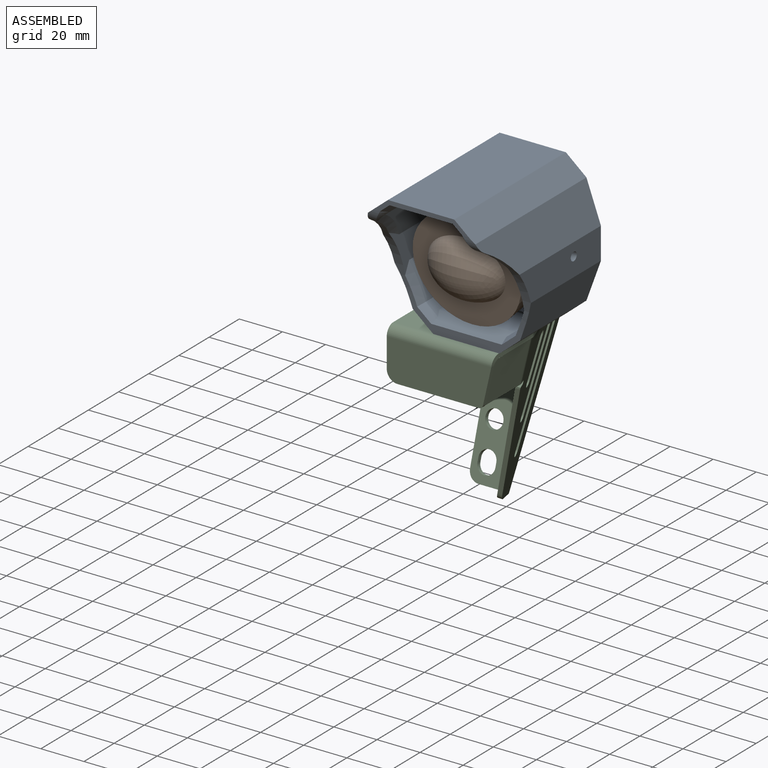
[diagram: assembled view]
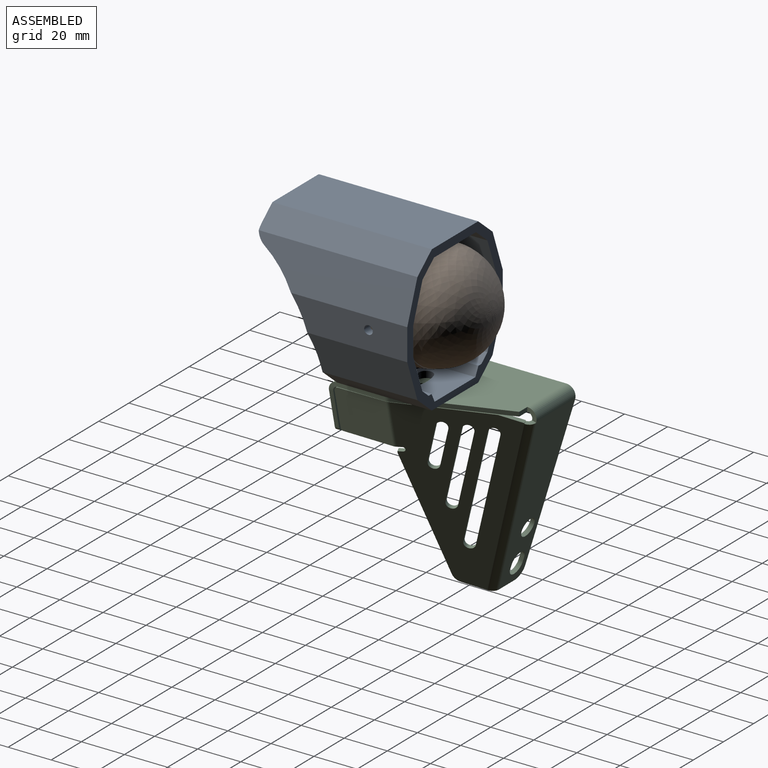
[diagram: assembled view, second angle]
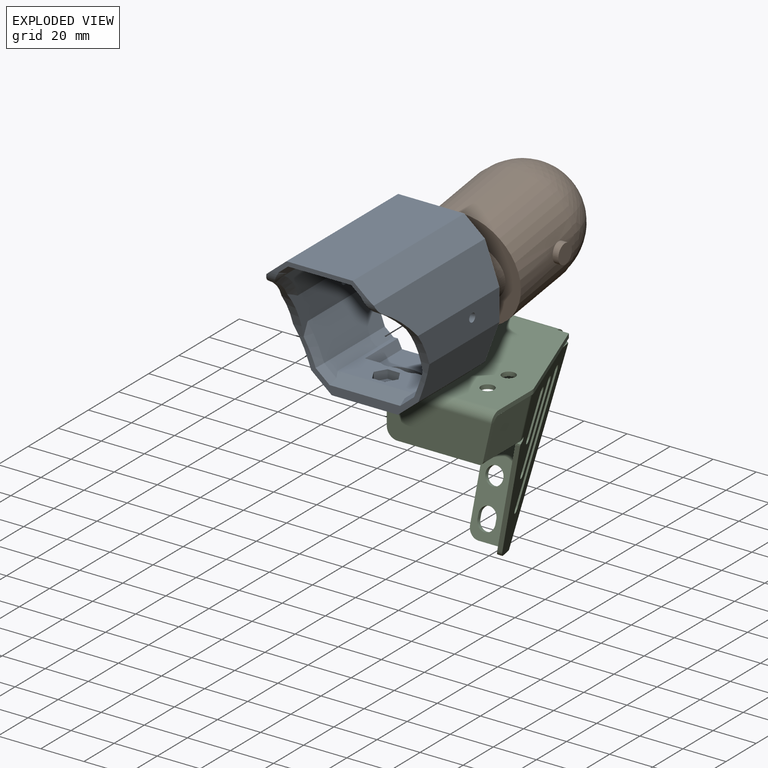
[diagram: exploded view]
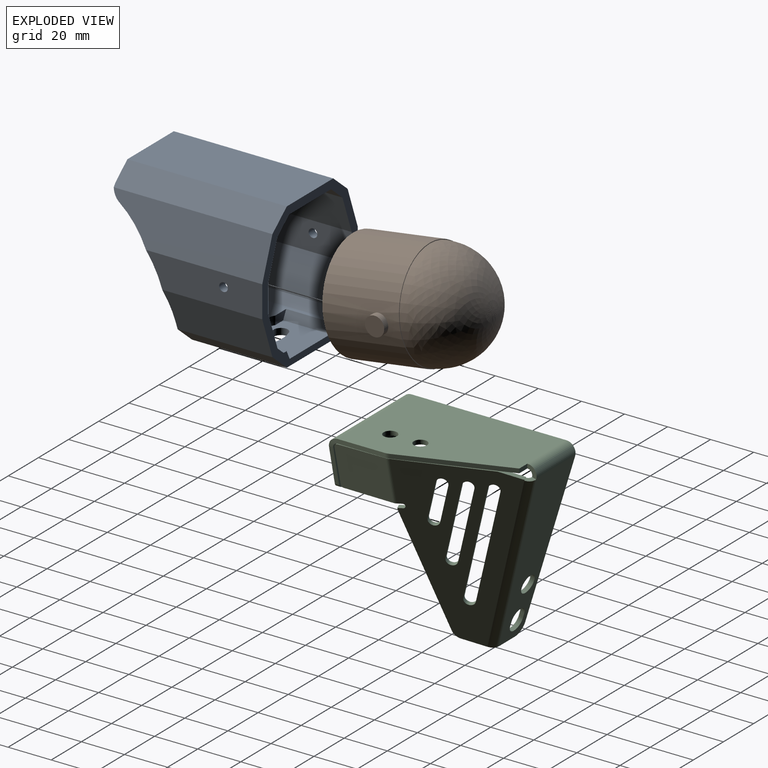
[diagram: exploded view, second angle]
ASSEMBLY  parts=3 mates=2
PART A: 67 faces, bbox 63.6x74.3x67.9 mm
  f0: plane 37x34.99mm, normal (0,0,1), area 518.5mm2, adj f8,f9,f30,f46,f47,f48,f49,f50
  f1: cylinder r=17.2mm len=11.77mm, axis (0,0,-1), area 36mm2, adj f2,f4,f6,f57
  f2: cylinder r=3.2mm len=6.21mm, axis (0,0,-1), area 30.2mm2, adj f1,f3,f6,f57
  f3: cylinder r=10.8mm len=7.39mm, axis (0,0,-1), area 22.6mm2, adj f2,f4,f6,f57
  f4: cylinder r=3.2mm len=6.21mm, axis (0,0,-1), area 30.2mm2, adj f1,f3,f6,f57
  f5: cylinder r=3.2mm len=6.4mm, axis (0,0,-1), area 60.3mm2, adj f6,f45
  f6: plane 44x30.76mm, normal (0,0,-1), area 1226.4mm2, adj f1,f2,f3,f4,f5,f12,f13,f30
  f7: plane 42.48x16.81mm, normal (-0.94,0,0.34), area 730.7mm2, adj f8,f28,f30,f63,f64
  f8: plane 40.2x5.67mm, normal (-0.64,0,0.77), area 215.4mm2, adj f0,f7,f30,f58,f62
  f9: plane 40.2x5.67mm, normal (0.64,0,0.77), area 215.4mm2, adj f0,f10,f30,f58,f59
  f10: plane 42.48x16.8mm, normal (0.94,0,0.34), area 730.7mm2, adj f9,f15,f30,f60,f61
  f11: plane 46.47x18.53mm, normal (-0.94,0,-0.34), area 877.5mm2, adj f12,f27,f30,f32,f33
  f12: plane 44x9.55mm, normal (-0.64,0,-0.77), area 548.6mm2, adj f6,f11,f30,f32
  f13: plane 44x9.55mm, normal (0.64,0,-0.77), area 548.6mm2, adj f6,f14,f30,f32
  f14: plane 46.47x18.53mm, normal (0.94,0,-0.34), area 877.5mm2, adj f13,f21,f30,f31,f32
  f15: plane 56.18x22.08mm, normal (1,0,0), area 666.1mm2, adj f10,f16,f30,f33,f35,f44,f60
  f16: plane 67.05x16.83mm, normal (0.94,0,-0.34), area 1012.7mm2, adj f15,f17,f30,f44
  f17: plane 70.02x7.9mm, normal (0.64,0,-0.77), area 693.8mm2, adj f16,f18,f30,f42,f43,f44
  f18: plane 70x27.84mm, normal (0,0,-1), area 1949.1mm2, adj f17,f19,f30,f41
  f19: plane 70.01x7.9mm, normal (-0.64,0,-0.77), area 693.8mm2, adj f18,f20,f30,f38,f39,f40
  f20: plane 67.05x16.83mm, normal (-0.94,0,-0.34), area 1012.7mm2, adj f19,f28,f30,f38
  f21: plane 54x14.71mm, normal (1,0,0), area 718mm2, adj f14,f22,f30,f31,f34
  f22: plane 73.92x18.74mm, normal (0.94,0,0.34), area 1251.7mm2, adj f21,f23,f30,f31,f36
  f23: plane 74.03x9.58mm, normal (0.64,0,0.77), area 922.3mm2, adj f22,f24,f29,f30,f36
  f24: plane 74x30.76mm, normal (0,0,1), area 2275.9mm2, adj f23,f25,f29,f30
  f25: plane 74.03x9.58mm, normal (-0.64,0,0.77), area 922.3mm2, adj f24,f26,f29,f30,f37
  f26: plane 73.92x18.74mm, normal (-0.94,0,0.34), area 1251.7mm2, adj f25,f27,f30,f33,f37
  f27: plane 54x14.71mm, normal (-1,0,0), area 718mm2, adj f11,f26,f30,f33,f35
  f28: plane 56.18x22.08mm, normal (-1,0,0), area 666.1mm2, adj f7,f20,f30,f31,f34,f38,f63
  f29: plane 44.31x5.69mm, normal (0,-1,0), area 89.2mm2, adj f23,f24,f25,f36,f37,f40,f41,f42
  f30: plane 67.66x63.3mm, normal (0,1,0), area 803.8mm2, adj f0,f6,f7,f8,f9,f10,f11,f12
  f31: cylinder r=50mm len=43.79mm, axis (1,0,0), area 177.3mm2, adj f14,f21,f22,f28,f32,f36,f38,f39
  f32: plane 52.17x11.18mm, normal (0,-1,0), area 190.5mm2, adj f6,f11,f12,f13,f14,f31,f33,f58
  f33: cylinder r=50mm len=43.79mm, axis (1,0,0), area 177.3mm2, adj f11,f15,f26,f27,f32,f37,f43,f44
  f34: cylinder r=2mm len=4mm, axis (1,0,0), area 50.3mm2, adj f21,f28
  f35: cylinder r=2mm len=4mm, axis (1,0,0), area 50.3mm2, adj f15,f27
  f36: cylinder r=8mm len=7.59mm, axis (1,0,0), area 34.4mm2, adj f22,f23,f29,f31,f39
  f37: cylinder r=8mm len=7.59mm, axis (1,0,0), area 34.4mm2, adj f25,f26,f29,f33,f43
  f38: bspline ~20.67x18.79mm, area 88.4mm2, adj f19,f20,f28,f31,f39
  f39: bspline ~7.06x6.12mm, area 28.3mm2, adj f19,f31,f36,f38,f40
  f40: plane 5.22x5.12mm, normal (-0.57,-0.45,-0.69), area 24mm2, adj f19,f29,f39,f41
  f41: plane 29.3x4mm, normal (0,-0.45,-0.89), area 127.8mm2, adj f18,f29,f40,f42
  f42: plane 5.22x5.12mm, normal (0.57,-0.45,-0.69), area 24mm2, adj f17,f29,f41,f43
  f43: bspline ~7.06x6.12mm, area 28.3mm2, adj f17,f33,f37,f42,f44
  f44: bspline ~20.67x18.79mm, area 88.4mm2, adj f15,f16,f17,f33,f43
  f45: plane 11.6x10.11mm, normal (0,0,1), area 55.3mm2, adj f5,f46,f47,f48,f49,f50,f51
  f46: plane 5.05x4mm, normal (0.87,0.49,0), area 23.2mm2, adj f0,f45,f47,f51
  f47: plane 5.8x4mm, normal (0.01,1,0), area 23.2mm2, adj f0,f45,f46,f48
  f48: plane 4.99x4mm, normal (-0.86,0.51,0), area 23.2mm2, adj f0,f45,f47,f49
  f49: plane 5.05x4mm, normal (-0.87,-0.49,0), area 23.2mm2, adj f0,f45,f48,f50
  f50: plane 5.8x4mm, normal (-0.01,-1,0), area 23.2mm2, adj f0,f45,f49,f51
  f51: plane 4.99x4mm, normal (0.86,-0.51,0), area 23.2mm2, adj f0,f45,f46,f50
  f52: plane 7.28x4mm, normal (0,1,0), area 25.1mm2, adj f0,f53,f57,f65
  f53: cylinder r=6.05mm len=5.48mm, axis (0,0,1), area 22.9mm2, adj f0,f52,f54,f57
  f54: cylinder r=8mm len=5.75mm, axis (0,0,1), area 23.5mm2, adj f0,f53,f55,f57
  f55: cylinder r=6.05mm len=5.2mm, axis (0,0,1), area 21.7mm2, adj f0,f54,f56,f57
  f56: plane 7.28x4mm, normal (0,1,0), area 25.1mm2, adj f0,f55,f57,f66
  f57: plane 27.07x22.91mm, normal (0,0,1), area 506.6mm2, adj f1,f2,f3,f4,f30,f52,f53,f54
  f58: plane 34.99x7mm, normal (0,-0.39,0.92), area 249.4mm2, adj f0,f8,f9,f32,f59,f62
  f59: plane 7.01x6.39mm, normal (0.59,-0.38,0.71), area 32.7mm2, adj f9,f32,f58,f61
  f60: bspline ~17.94x7.81mm, area 58.6mm2, adj f10,f15,f33,f61
  f61: plane 3.8x2.27mm, normal (0.87,-0.38,0.32), area 6.7mm2, adj f10,f32,f59,f60
  f62: plane 7.01x6.39mm, normal (-0.59,-0.38,0.71), area 32.7mm2, adj f8,f32,f58,f64
  f63: bspline ~17.94x7.81mm, area 58.6mm2, adj f7,f28,f31,f64
  f64: plane 3.8x2.27mm, normal (-0.87,-0.38,0.32), area 6.7mm2, adj f7,f32,f62,f63
  f65: plane 21.91x4mm, normal (0.89,0,0.45), area 97.9mm2, adj f0,f30,f52,f57
  f66: plane 21.84x4mm, normal (-0.89,0,0.45), area 97.7mm2, adj f0,f30,f56,f57
PART B: 9 faces, bbox 154.4x144.8x148.8 mm
  f0: plane 50x50mm, normal (0,-1,0), area 1167.5mm2, adj f3,f8
  f1: cylinder r=4.5mm len=9mm, axis (-1,0,0), area 86.5mm2, adj f2,f3
  f2: plane 9x9mm, normal (1,0,0), area 63.6mm2, adj f1
  f3: cylinder r=25mm len=50mm, axis (0,1,0), area 5527mm2, adj f0,f1,f4,f6
  f4: plane 148.77x148.77mm, normal (0,1,0), area 48mm2, adj f3,f7
  f5: plane 9x9mm, normal (-1,0,0), area 63.6mm2, adj f6
  f6: cylinder r=4.5mm len=9mm, axis (-1,0,0), area 96.4mm2, adj f3,f5
  f7: revolved ~49.38x24.69mm, area 0mm2, adj f4
  f8: revolved ~35.83x28.28mm, area 1132.3mm2, adj f0
PART C: 73 faces, bbox 49x80.5x86.2 mm
  f0: plane 5.35x2mm, normal (0,1,0), area 10.7mm2, adj f2,f3,f5,f58
  f1: plane 22.06x2mm, normal (1,0,0), area 44.1mm2, adj f2,f3,f8,f70
  f2: plane 71.89x49mm, normal (0,0,-1), area 3026.1mm2, adj f0,f1,f4,f5,f6,f7,f8,f61
  f3: plane 71.89x49mm, normal (0,0,1), area 3026.1mm2, adj f0,f1,f4,f5,f6,f7,f8,f60
  f4: plane 71.89x2mm, normal (-1,0,0), area 143.8mm2, adj f2,f3,f59,f69
  f5: plane 48.12x17.51mm, normal (0.94,0.34,0), area 102.4mm2, adj f0,f2,f3,f8
  f6: cylinder r=3.1mm len=6.2mm, axis (0,0,-1), area 39mm2, adj f2,f3
  f7: cylinder r=3.1mm len=6.2mm, axis (0,0,-1), area 39mm2, adj f2,f3
  f8: cylinder r=5mm len=2mm, axis (0,0,-1), area 3.5mm2, adj f1,f2,f3,f5
  f9: plane 2.5x2.5mm, normal (-1,0,0), area 4mm2, adj f10,f14,f16,f17
  f10: cylinder r=4.15mm len=8.3mm, axis (0,-0.96,0.29), area 26.1mm2, adj f9,f11,f16,f17
  f11: plane 2.5x2.5mm, normal (1,0,0), area 4mm2, adj f10,f14,f16,f17
  f12: plane 76.31x25.07mm, normal (-1,0,0), area 158.4mm2, adj f16,f17,f18,f59
  f13: plane 10.44x1.91mm, normal (0,-0.29,-0.96), area 20.9mm2, adj f16,f17,f18,f55
  f14: cylinder r=4.15mm len=8.3mm, axis (0,-0.96,0.29), area 26.1mm2, adj f9,f11,f16,f17
  f15: cylinder r=4.15mm len=8.52mm, axis (0,-0.96,0.29), area 52.2mm2, adj f16,f17
  f16: plane 80.51x25.84mm, normal (0,-0.96,0.29), area 1607.2mm2, adj f9,f10,f11,f12,f13,f14,f15,f18
  f17: plane 80.51x25.84mm, normal (0,0.96,-0.29), area 1607.2mm2, adj f9,f10,f11,f12,f13,f14,f15,f18
  f18: cylinder r=5mm len=5.37mm, axis (0,-0.96,0.29), area 15.7mm2, adj f12,f13,f16,f17
  f19: plane 2.04x1.26mm, normal (0.32,-0.95,-0.07), area 1.7mm2, adj f20,f21,f31,f42
  f20: plane 82.95x50.01mm, normal (-0.92,-0.33,0.22), area 2312.1mm2, adj f19,f22,f23,f24,f25,f26,f27,f28
  f21: plane 82.95x50.01mm, normal (0.92,0.33,-0.22), area 2312.1mm2, adj f19,f22,f23,f24,f25,f26,f27,f28
  f22: plane 53.53x16.88mm, normal (0.37,-0.9,0.23), area 111.9mm2, adj f20,f21,f37,f38
  f23: plane 40.98x16.08mm, normal (0.21,0.07,0.98), area 85.5mm2, adj f20,f21,f24,f51
  f24: plane 10.33x5.84mm, normal (0.12,0.29,0.95), area 21.5mm2, adj f20,f21,f23,f25
  f25: plane 1.88x0.78mm, normal (-0.37,0.9,-0.23), area 0.7mm2, adj f20,f21,f24,f54
  f26: plane 9.92x5.67mm, normal (-0.12,-0.29,-0.95), area 20.6mm2, adj f20,f21,f39,f55
  f27: plane 18.04x6.03mm, normal (-0.37,0.9,-0.23), area 37.1mm2, adj f20,f21,f34,f35
  f28: plane 18.04x6.03mm, normal (0.37,-0.9,0.23), area 37.1mm2, adj f20,f21,f34,f35
  f29: plane 35.78x11.46mm, normal (-0.37,0.9,-0.23), area 74.5mm2, adj f20,f21,f33,f36
  f30: plane 35.78x11.46mm, normal (0.37,-0.9,0.23), area 74.5mm2, adj f20,f21,f33,f36
  f31: plane 54.36x19.21mm, normal (0.25,-0.92,-0.3), area 116.2mm2, adj f19,f20,f21,f39
  f32: plane 53.53x16.88mm, normal (-0.37,0.9,-0.23), area 111.9mm2, adj f20,f21,f37,f38
  f33: cylinder r=2.5mm len=5.26mm, axis (-0.92,-0.33,0.22), area 15.7mm2, adj f20,f21,f29,f30
  f34: cylinder r=2.5mm len=5.26mm, axis (0.92,0.33,-0.22), area 15.7mm2, adj f20,f21,f27,f28
  f35: cylinder r=2.5mm len=5.26mm, axis (-0.92,-0.33,0.22), area 15.7mm2, adj f20,f21,f27,f28
  f36: cylinder r=2.5mm len=5.26mm, axis (0.92,0.33,-0.22), area 15.7mm2, adj f20,f21,f29,f30
  f37: cylinder r=2.5mm len=5.26mm, axis (0.92,0.33,-0.22), area 15.7mm2, adj f20,f21,f22,f32
  f38: cylinder r=2.5mm len=5.26mm, axis (0.92,0.33,-0.22), area 15.7mm2, adj f20,f21,f22,f32
  f39: cylinder r=5mm len=3.79mm, axis (0.92,0.33,-0.22), area 10.2mm2, adj f20,f21,f26,f31
  f40: cylinder r=1.06mm len=2.51mm, axis (0.92,0.33,-0.22), area 6.7mm2, adj f20,f21,f41,f42
  f41: plane 2.83x2.57mm, normal (-0.23,0,-0.97), area 4.6mm2, adj f20,f21,f40,f50
  f42: plane 2.83x2.57mm, normal (0.23,0,0.97), area 4.6mm2, adj f19,f20,f21,f40
  f43: plane 17.77x6.05mm, normal (0,-1,0), area 35.6mm2, adj f46,f47,f48,f49
  f44: plane 22.2x2mm, normal (0.23,-0.01,0.97), area 44.4mm2, adj f46,f47,f49,f51
  f45: plane 23.19x1.98mm, normal (-0.23,-0.01,-0.97), area 46.4mm2, adj f46,f47,f48,f50
  f46: plane 24.18x20.62mm, normal (-0.97,0,0.23), area 506.2mm2, adj f43,f44,f45,f48,f49,f53
  f47: plane 24.18x20.62mm, normal (0.97,0,-0.23), area 506.2mm2, adj f43,f44,f45,f48,f49,f52
  f48: cylinder r=1mm len=2.18mm, axis (-0.97,0,0.23), area 3.1mm2, adj f43,f45,f46,f47
  f49: cylinder r=2mm len=2.41mm, axis (-0.97,0,0.23), area 6.2mm2, adj f43,f44,f46,f47
  f50: plane 2.07x1.4mm, normal (-0.23,0,-0.97), area 2.2mm2, adj f41,f45,f52,f53
  f51: bspline ~2.08x1.4mm, area 2.2mm2, adj f23,f44,f52,f53
  f52: cylinder r=4.3mm len=20.67mm, axis (-0.23,0,-0.97), area 30.2mm2, adj f21,f47,f50,f51
  f53: cylinder r=2.3mm len=20.64mm, axis (-0.23,0,-0.97), area 16.1mm2, adj f20,f46,f50,f51
  f54: plane 3.96x3.36mm, normal (0.12,0.29,0.95), area 7.8mm2, adj f25,f56,f57,f58
  f55: bspline ~4x3.26mm, area 7.9mm2, adj f13,f26,f56,f57
  f56: cylinder r=4.3mm len=80.93mm, axis (0.12,0.29,0.95), area 432mm2, adj f17,f21,f54,f55
  f57: cylinder r=2.3mm len=80.73mm, axis (0.12,0.29,0.95), area 231.1mm2, adj f16,f20,f54,f55
  f58: plane 5.56x4.3mm, normal (1,0,0), area 12.3mm2, adj f0,f54,f60,f61
  f59: plane 5.56x4.3mm, normal (-1,0,0), area 12.3mm2, adj f4,f12,f60,f61
  f60: cylinder r=4.3mm len=25.84mm, axis (1,0,0), area 207.5mm2, adj f3,f17,f58,f59
  f61: cylinder r=2.3mm len=25.84mm, axis (1,0,0), area 111mm2, adj f2,f16,f58,f59
  f62: plane 37.71x2mm, normal (0,0,-1), area 75.4mm2, adj f65,f66,f67,f68
  f63: plane 13.7x2mm, normal (-1,0,0), area 27.4mm2, adj f65,f66,f67,f69
  f64: plane 17.14x3.9mm, normal (0.98,0,-0.22), area 35.2mm2, adj f65,f66,f68,f70
  f65: plane 48.56x18.7mm, normal (0,1,0), area 862.4mm2, adj f62,f63,f64,f67,f68,f72
  f66: plane 48.56x18.7mm, normal (0,-1,0), area 862.4mm2, adj f62,f63,f64,f67,f68,f71
  f67: cylinder r=5mm len=5mm, axis (0,1,0), area 15.7mm2, adj f62,f63,f65,f66
  f68: cylinder r=2mm len=2mm, axis (0,-1,0), area 5.4mm2, adj f62,f64,f65,f66
  f69: plane 4.3x4.3mm, normal (-1,0,0), area 10.4mm2, adj f4,f63,f71,f72
  f70: bspline ~4.3x4.3mm, area 10.4mm2, adj f1,f64,f71,f72
  f71: cylinder r=4.3mm len=49mm, axis (-1,0,0), area 329.5mm2, adj f3,f66,f69,f70
  f72: cylinder r=2.3mm len=49mm, axis (-1,0,0), area 176.2mm2, adj f2,f65,f69,f70
PLACE A t=(142.35,57.06,-9)mm
PLACE B rot(axis=(1,0,0),8.4deg) t=(142.35,39.06,24.18)mm
PLACE C t=(108.4,90.76,-11)mm
MATE revolute B.f1 <-> A.f34  axis (1,0,0) through (170,39.06,24.18)mm
MATE fastened A.f1 <-> C.f6  axis (0,0,-1) through (142.4,27.06,-11)mm
